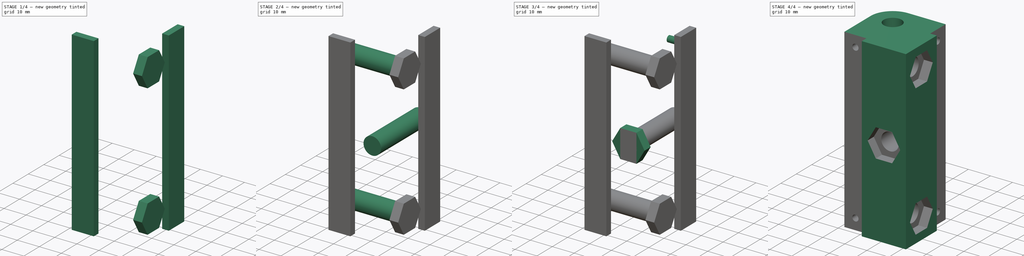
[diagram: build sequence overview — one tinted view per stage of 4, left to right]
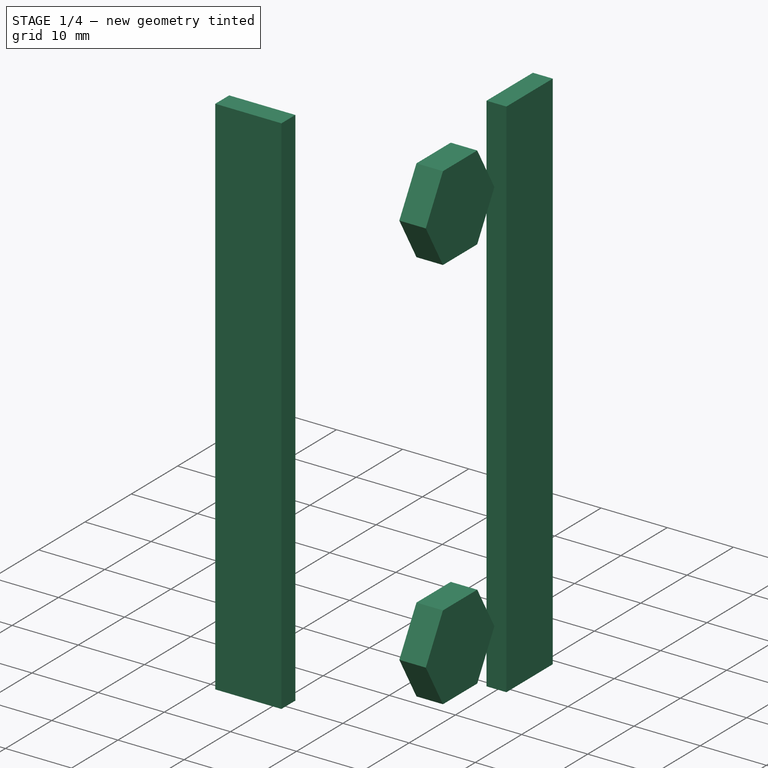
[diagram: stage 1 of 4 — iso view after this stage's code; geometry added in this stage tinted green]
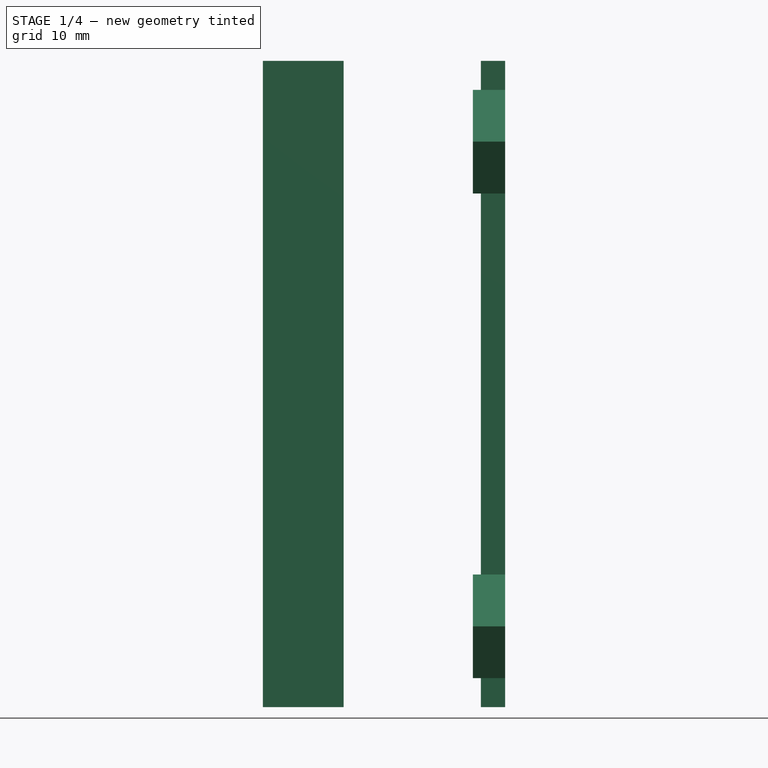
[diagram: stage 1 of 4 — front view after this stage's code; geometry added in this stage tinted green]
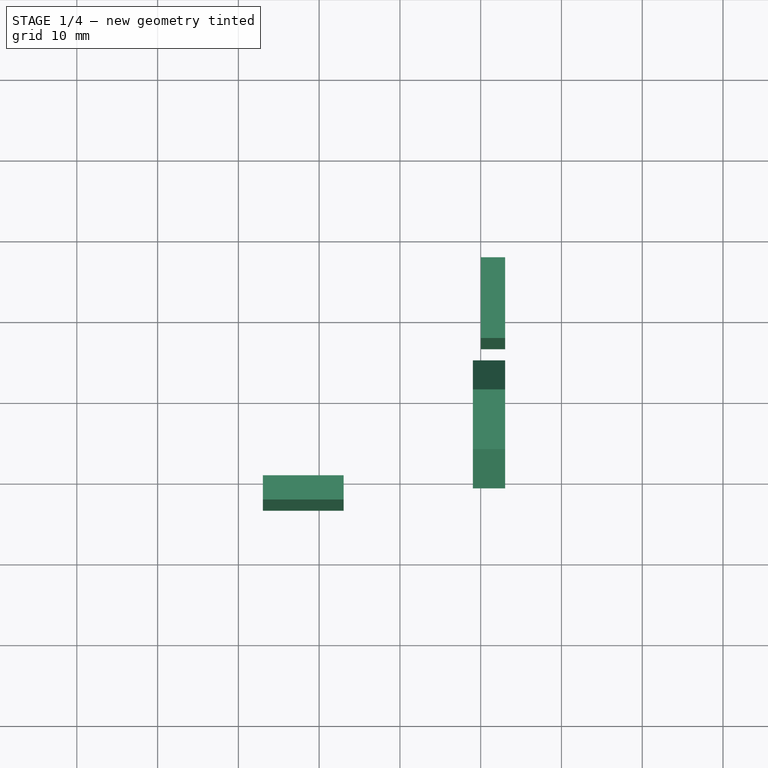
[diagram: stage 1 of 4 — top view after this stage's code; geometry added in this stage tinted green]
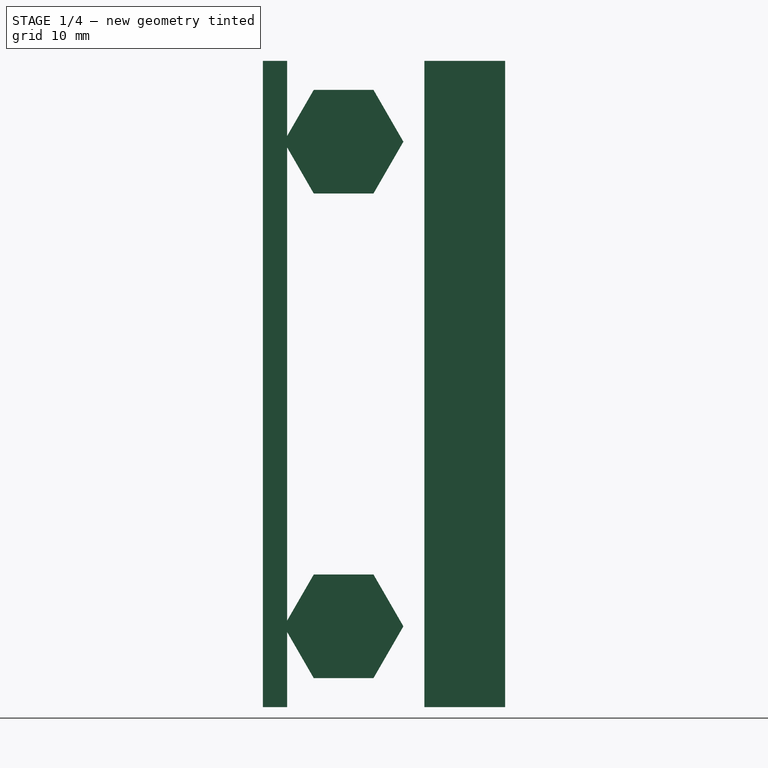
[diagram: stage 1 of 4 — right view after this stage's code; geometry added in this stage tinted green]
FCSTD DOCUMENT  (FreeCAD 0.16R6707 (Git))
Label: Corner_FR
License: All rights reserved
LicenseURL: http://en.wikipedia.org/wiki/All_rights_reserved
objects: Sketcher::SketchObject×9, PartDesign::Pad×9, Part::MultiFuse×1, Part::Cut×1
note: 29 computed .brp shape members not serialized (recipe doc carries the construction recipe); baked Part::Feature solids carry a one-line shape summary decoded from their .brp

FEATURE [PartDesign::Pad] Pad006  label="SideNutFlush02"
  Length = 4
  Length2 = 100
  Placement = pos=(13.0295,0,0) rot=(0.57735,0.57735,0.57735;2.0944rad)
  Reversed = true
  Sketch = -> Sketch002
  Type = 0
FEATURE [PartDesign::Pad] Pad007  label="PlexiFlush02"
  Length = 3
  Length2 = 100
  Placement = pos=(13.0295,0,0) rot=(0.57735,0.57735,0.57735;2.0944rad)
  Reversed = true
  Sketch = -> Sketch003
  Type = 0
FEATURE [PartDesign::Pad] Pad008  label="PlexiFlush01"
  Length = 3
  Length2 = 100
  Placement = pos=(0,-13.3168,0) rot=(1,0,0;1.5708rad)
  Reversed = true
  Sketch = -> Sketch005
  Type = 0
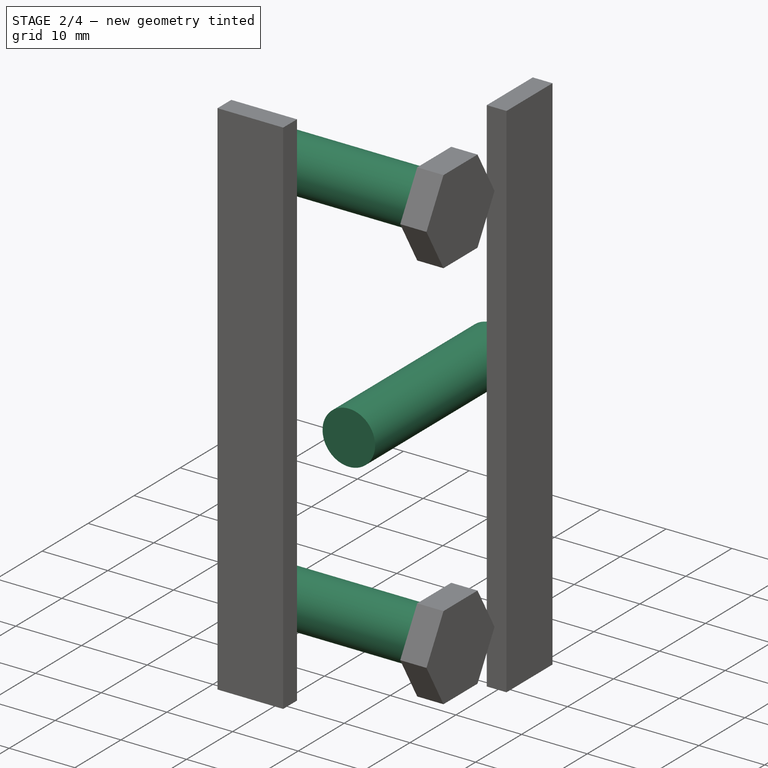
[diagram: stage 2 of 4 — iso view after this stage's code; geometry added in this stage tinted green]
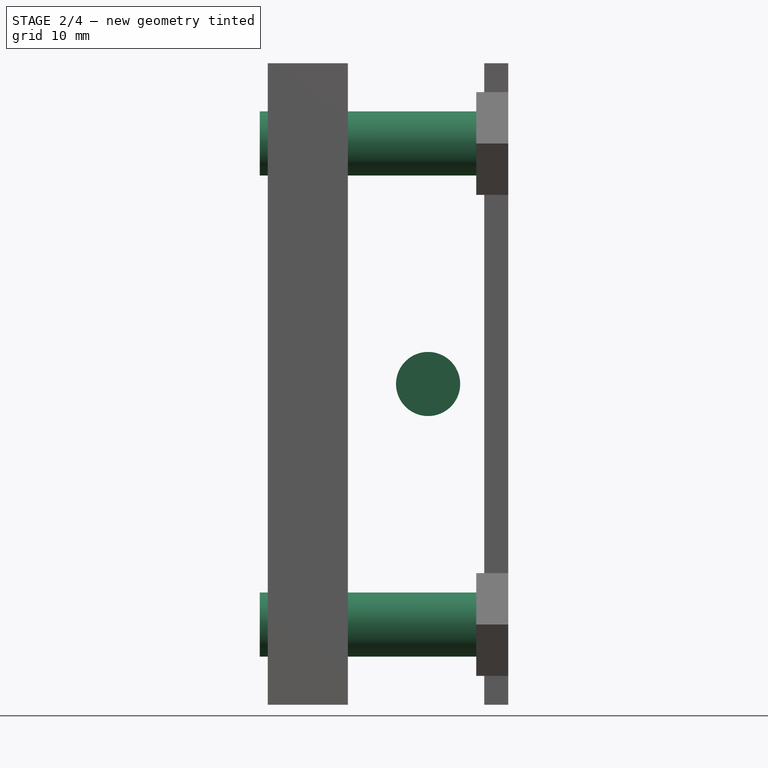
[diagram: stage 2 of 4 — front view after this stage's code; geometry added in this stage tinted green]
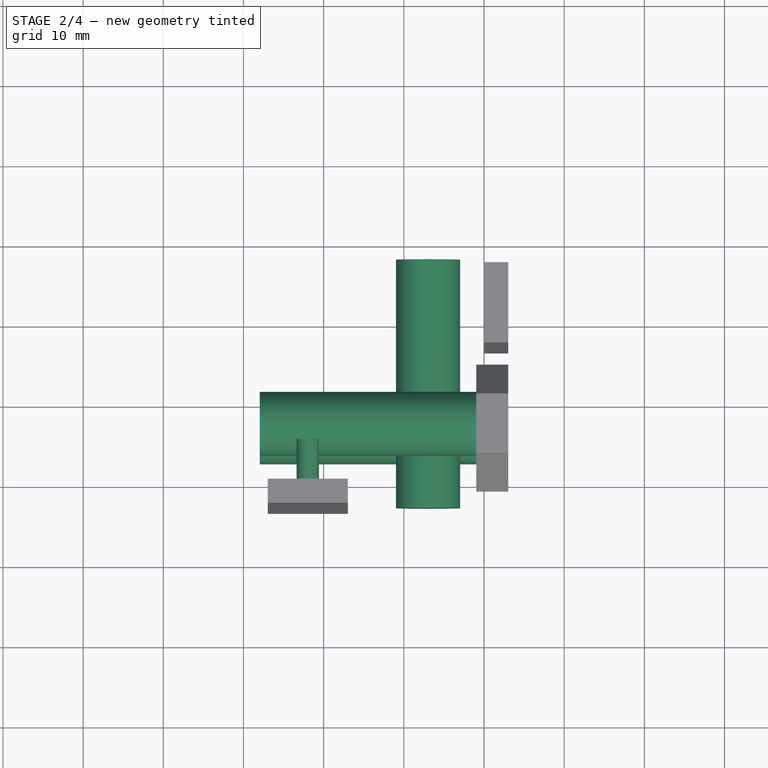
[diagram: stage 2 of 4 — top view after this stage's code; geometry added in this stage tinted green]
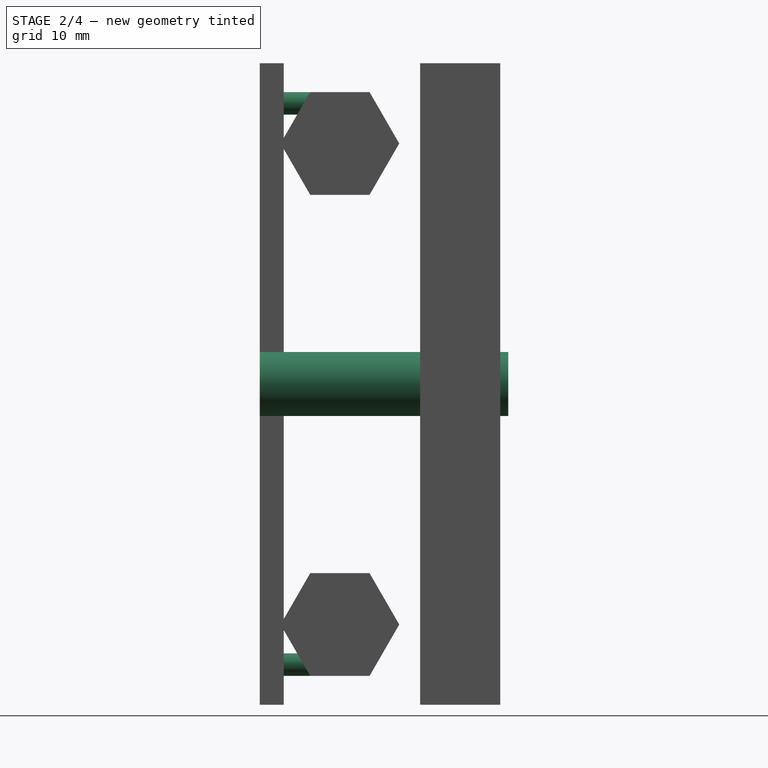
[diagram: stage 2 of 4 — right view after this stage's code; geometry added in this stage tinted green]
FEATURE [PartDesign::Pad] Pad003  label="RodHole01"
  Length = 31
  Length2 = 100
  Placement = pos=(0,-13.3168,0) rot=(1,0,0;1.5708rad)
  Reversed = true
  Sketch = -> Sketch007
  Type = 0
FEATURE [PartDesign::Pad] Pad004  label="RodHole02"
  Length = 31
  Length2 = 100
  Placement = pos=(13.0295,0,0) rot=(0.57735,0.57735,0.57735;2.0944rad)
  Reversed = true
  Sketch = -> Sketch001
  Type = 0
FEATURE [PartDesign::Pad] Pad005  label="PlexiMount01"
  Length = 5
  Length2 = 100
  Placement = pos=(0,-10.3168,0) rot=(1,0,0;1.5708rad)
  Reversed = true
  Sketch = -> Sketch006
  Type = 0
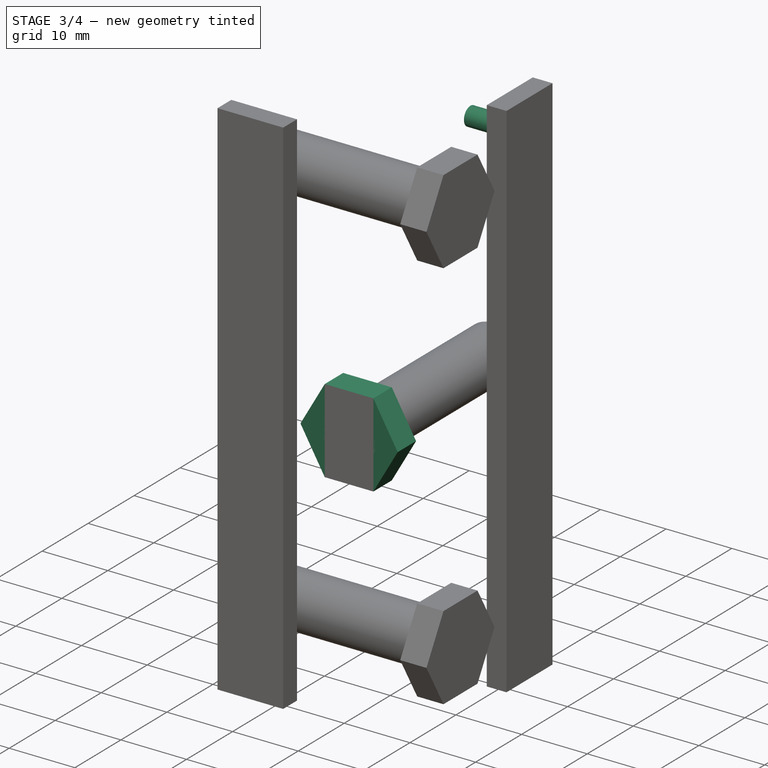
[diagram: stage 3 of 4 — iso view after this stage's code; geometry added in this stage tinted green]
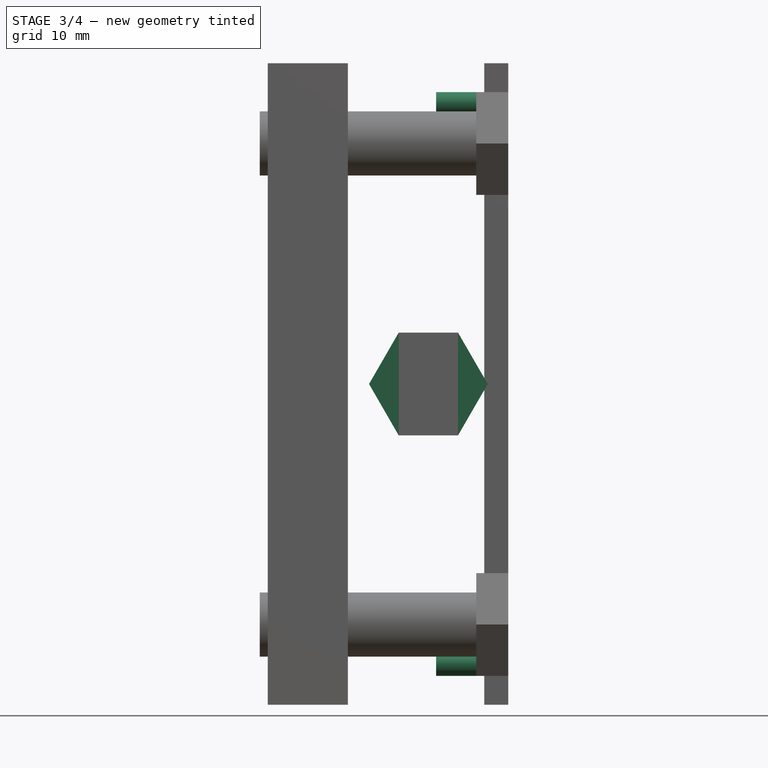
[diagram: stage 3 of 4 — front view after this stage's code; geometry added in this stage tinted green]
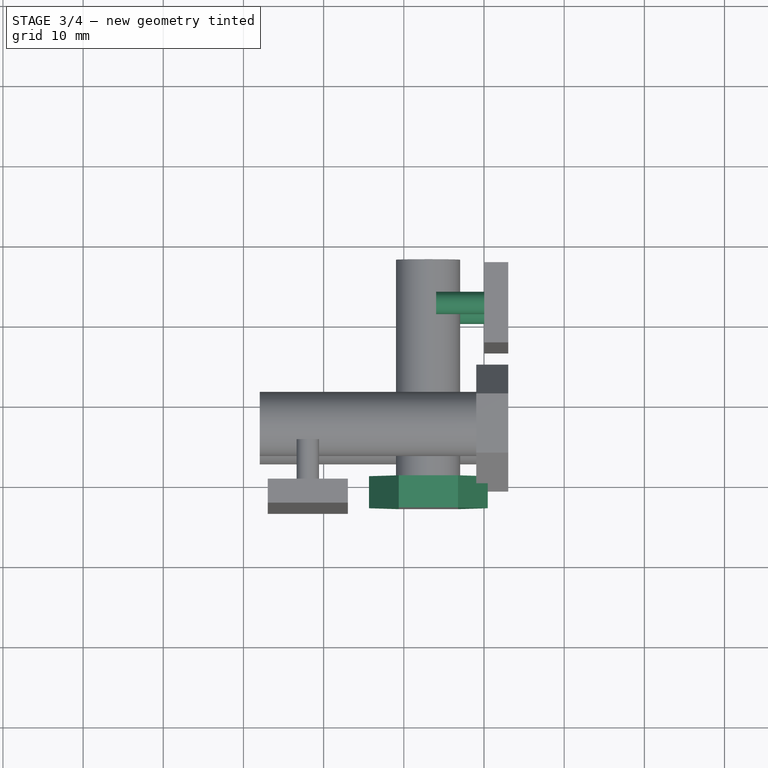
[diagram: stage 3 of 4 — top view after this stage's code; geometry added in this stage tinted green]
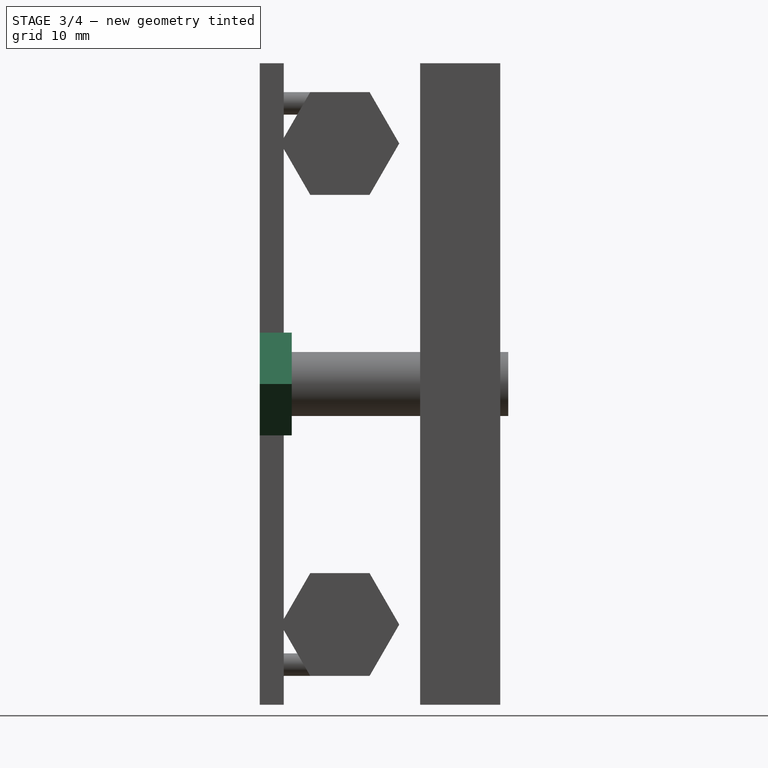
[diagram: stage 3 of 4 — right view after this stage's code; geometry added in this stage tinted green]
FEATURE [Sketcher::SketchObject] Sketch
  sketch-geometry (6):
    g0: LineSegment StartX=-16.9705 StartY=6.68317 StartZ=0 EndX=-16.9705 EndY=-13.3168 EndZ=0
    g1: LineSegment StartX=-16.9705 StartY=-13.3168 StartZ=0 EndX=13.0295 EndY=-13.3168 EndZ=0
    g2: LineSegment StartX=13.0295 StartY=-13.3168 StartZ=0 EndX=13.0295 EndY=16.6832 EndZ=0
    g3: LineSegment StartX=13.0295 StartY=16.6832 StartZ=0 EndX=-6.9705 EndY=16.6832 EndZ=0
    g4: ArcOfCircle CenterX=-6.97053 CenterY=6.6832 CenterZ=0 NormalX=0 NormalY=0 NormalZ=1 Radius=10 StartAngle=1.57079 EndAngle=3.1416
    g5: Circle CenterX=-6.97053 CenterY=6.6832 CenterZ=0 NormalX=0 NormalY=0 NormalZ=1 Radius=4.1
  constraints (16):
    c: Vertical(g0)
    c: Coincident(g0,g1)
    c: Horizontal(g1)
    c: Coincident(g1,g2)
    c: Vertical(g2)
    c: Coincident(g2,g3)
    c: Horizontal(g3)
    c: Coincident(g4,g3)
    c: Coincident(g4,g0)
    c: Equal(g0,g3)
    c: Radius(g4) = 10
    c: Tangent(g0,g4)
    c: Tangent(g4,g3)
    c: DistanceX(g3) = -20
    c: Coincident(g5,g4)
    c: Radius(g5) = 4.1
FEATURE [Sketcher::SketchObject] Sketch001
  Placement = pos=(13.0295,0,0) rot=(0.57735,0.57735,0.57735;2.0944rad)
  sketch-geometry (2):
    g0: Circle CenterX=-3.3168 CenterY=70 CenterZ=0 NormalX=0 NormalY=0 NormalZ=1 Radius=4
    g1: Circle CenterX=-3.3168 CenterY=10 CenterZ=0 NormalX=0 NormalY=0 NormalZ=1 Radius=4
  constraints (4):
    c: Radius(g1) = 4
    c: Equal(g1,g0)
    c: DistanceX(g0,g1) = 0
    c: DistanceY(g1,g0) = 60
FEATURE [Sketcher::SketchObject] Sketch002
  Placement = pos=(13.0295,0,0) rot=(0.57735,0.57735,0.57735;2.0944rad)
  sketch-geometry (14):
    g0: LineSegment StartX=4.0832 StartY=70 StartZ=0 EndX=0.383203 EndY=76.4086 EndZ=0
    g1: LineSegment StartX=0.383203 StartY=76.4086 StartZ=0 EndX=-7.0168 EndY=76.4086 EndZ=0
    g2: LineSegment StartX=-7.0168 StartY=76.4086 StartZ=0 EndX=-10.7168 EndY=70 EndZ=0
    g3: LineSegment StartX=-10.7168 StartY=70 StartZ=0 EndX=-7.0168 EndY=63.5914 EndZ=0
    g4: LineSegment StartX=-7.0168 StartY=63.5914 StartZ=0 EndX=0.383203 EndY=63.5914 EndZ=0
    g5: LineSegment StartX=0.383203 StartY=63.5914 StartZ=0 EndX=4.0832 EndY=70 EndZ=0
    g6: Circle [constr] CenterX=-3.3168 CenterY=70 CenterZ=0 NormalX=0 NormalY=0 NormalZ=1 Radius=7.4
    g7: LineSegment StartX=0.383203 StartY=3.59141 StartZ=0 EndX=4.0832 EndY=10 EndZ=0
    g8: LineSegment StartX=4.0832 StartY=10 StartZ=0 EndX=0.383203 EndY=16.4086 EndZ=0
    g9: LineSegment StartX=0.383203 StartY=16.4086 StartZ=0 EndX=-7.0168 EndY=16.4086 EndZ=0
    g10: LineSegment StartX=-7.0168 StartY=16.4086 StartZ=0 EndX=-10.7168 EndY=10 EndZ=0
    g11: LineSegment StartX=-10.7168 StartY=10 StartZ=0 EndX=-7.0168 EndY=3.59141 EndZ=0
    g12: LineSegment StartX=-7.0168 StartY=3.59141 StartZ=0 EndX=0.383203 EndY=3.59141 EndZ=0
    g13: Circle [constr] CenterX=-3.3168 CenterY=10 CenterZ=0 NormalX=0 NormalY=0 NormalZ=1 Radius=7.4
  constraints (31):
    c: Coincident(g0,g1)
    c: Coincident(g1,g2)
    c: Coincident(g2,g3)
    c: Coincident(g3,g4)
    c: Coincident(g4,g5)
    c: Coincident(g5,g0)
    c: Equal(g0, g1-g5) x5
    c: PointOnObject(g0,g6)
    c: PointOnObject(g1,g6)
    c: PointOnObject(g2,g6)
    c: PointOnObject(g3,g6)
    c: PointOnObject(g4,g6)
    c: PointOnObject(g5,g6)
    c: Coincident(g7,g8)
    c: Coincident(g8,g9)
    c: Coincident(g9,g10)
    c: Coincident(g10,g11)
    c: Coincident(g11,g12)
    c: Coincident(g12,g7)
    c: Equal(g7, g8-g12) x5
    c: PointOnObject(g7,g13)
    c: PointOnObject(g8,g13)
    c: PointOnObject(g9,g13)
    c: PointOnObject(g10,g13)
    c: PointOnObject(g11,g13)
    c: PointOnObject(g12,g13)
    c: Parallel(g9,g4)
    c: Radius(g6) = 7.4
    c: Equal(g6,g13)
    c: DistanceX(g13,g6) = 0
    c: DistanceY(g6,g13) = -60
FEATURE [Sketcher::SketchObject] Sketch003
  Placement = pos=(13.0295,0,0) rot=(0.57735,0.57735,0.57735;2.0944rad)
  sketch-geometry (4):
    g0: LineSegment StartX=16.6832 StartY=80 StartZ=0 EndX=6.6832 EndY=80 EndZ=0
    g1: LineSegment StartX=6.6832 StartY=80 StartZ=0 EndX=6.6832 EndY=0 EndZ=0
    g2: LineSegment StartX=6.6832 StartY=0 StartZ=0 EndX=16.6832 EndY=0 EndZ=0
    g3: LineSegment StartX=16.6832 StartY=0 StartZ=0 EndX=16.6832 EndY=80 EndZ=0
  constraints (9):
    c: Coincident(g0,g1)
    c: Coincident(g1,g2)
    c: Coincident(g2,g3)
    c: Coincident(g3,g0)
    c: Horizontal(g0)
    c: Horizontal(g2)
    c: Vertical(g1)
    c: Vertical(g3)
    c: DistanceX(g0) = -10
FEATURE [Sketcher::SketchObject] Sketch004
  Placement = pos=(10.0295,0,0) rot=(0.57735,0.57735,0.57735;2.0944rad)
  sketch-geometry (2):
    g0: Circle CenterX=11.6832 CenterY=75 CenterZ=0 NormalX=0 NormalY=0 NormalZ=1 Radius=1.4
    g1: Circle CenterX=11.6832 CenterY=5 CenterZ=0 NormalX=0 NormalY=0 NormalZ=1 Radius=1.4
  constraints (4):
    c: DistanceX(g1,g0) = 0
    c: DistanceY(g0,g1) = -70
    c: Radius(g0) = 1.4
    c: Equal(g0,g1)
FEATURE [Sketcher::SketchObject] Sketch005
  Placement = pos=(0,-13.3168,0) rot=(1,0,0;1.5708rad)
  sketch-geometry (4):
    g0: LineSegment StartX=-16.9705 StartY=80 StartZ=0 EndX=-6.97053 EndY=80 EndZ=0
    g1: LineSegment StartX=-6.97053 StartY=80 StartZ=0 EndX=-6.97053 EndY=0 EndZ=0
    g2: LineSegment StartX=-6.97053 StartY=0 StartZ=0 EndX=-16.9705 EndY=0 EndZ=0
    g3: LineSegment StartX=-16.9705 StartY=0 StartZ=0 EndX=-16.9705 EndY=80 EndZ=0
  constraints (9):
    c: Coincident(g0,g1)
    c: Coincident(g1,g2)
    c: Coincident(g2,g3)
    c: Coincident(g3,g0)
    c: Horizontal(g0)
    c: Horizontal(g2)
    c: Vertical(g1)
    c: Vertical(g3)
    c: DistanceX(g0) = 10
FEATURE [Sketcher::SketchObject] Sketch006
  Placement = pos=(0,-10.3168,0) rot=(1,0,0;1.5708rad)
  sketch-geometry (2):
    g0: Circle CenterX=-11.9705 CenterY=75 CenterZ=0 NormalX=0 NormalY=0 NormalZ=1 Radius=1.4
    g1: Circle CenterX=-11.9705 CenterY=5 CenterZ=0 NormalX=0 NormalY=0 NormalZ=1 Radius=1.4
  constraints (4):
    c: DistanceX(g0,g1) = 0
    c: DistanceY(g0,g1) = -70
    c: Radius(g0) = 1.4
    c: Equal(g0,g1)
FEATURE [Sketcher::SketchObject] Sketch007
  Placement = pos=(0,-13.3168,0) rot=(1,0,0;1.5708rad)
  sketch-geometry (1):
    g0: Circle CenterX=3.0295 CenterY=40 CenterZ=0 NormalX=0 NormalY=0 NormalZ=1 Radius=4
  constraints (2):
    c: Radius(g0) = 4
    c: DistanceY(g-1,g0) = 40
FEATURE [Sketcher::SketchObject] Sketch008
  Placement = pos=(0,-13.3168,0) rot=(1,0,0;1.5708rad)
  sketch-geometry (7):
    g0: LineSegment StartX=6.76331 StartY=33.5914 StartZ=0 EndX=10.4633 EndY=40 EndZ=0
    g1: LineSegment StartX=10.4633 StartY=40 StartZ=0 EndX=6.76331 EndY=46.4086 EndZ=0
    g2: LineSegment StartX=6.76331 StartY=46.4086 StartZ=0 EndX=-0.636689 EndY=46.4086 EndZ=0
    g3: LineSegment StartX=-0.636689 StartY=46.4086 StartZ=0 EndX=-4.33669 EndY=40 EndZ=0
    g4: LineSegment StartX=-4.33669 StartY=40 StartZ=0 EndX=-0.636689 EndY=33.5914 EndZ=0
    g5: LineSegment StartX=-0.636689 StartY=33.5914 StartZ=0 EndX=6.76331 EndY=33.5914 EndZ=0
    g6: Circle [constr] CenterX=3.06331 CenterY=40 CenterZ=0 NormalX=0 NormalY=0 NormalZ=1 Radius=7.4
  constraints (16):
    c: Coincident(g0,g1)
    c: Coincident(g1,g2)
    c: Coincident(g2,g3)
    c: Coincident(g3,g4)
    c: Coincident(g4,g5)
    c: Coincident(g5,g0)
    c: Equal(g0, g1-g5) x5
    c: PointOnObject(g0,g6)
    c: PointOnObject(g1,g6)
    c: PointOnObject(g2,g6)
    c: PointOnObject(g3,g6)
    c: PointOnObject(g4,g6)
    c: PointOnObject(g5,g6)
    c: Radius(g6) = 7.4
    c: Perpendicular(g-2,g2)
    c: DistanceY(g-1,g6) = 40
FEATURE [PartDesign::Pad] Pad001  label="SideNutFlush01"
  Length = 4
  Length2 = 100
  Placement = pos=(0,-13.3168,0) rot=(1,0,0;1.5708rad)
  Reversed = true
  Sketch = -> Sketch008
  Type = 0
FEATURE [PartDesign::Pad] Pad002  label="PlexiMount02"
  Length = 6
  Length2 = 100
  Placement = pos=(10.0295,0,0) rot=(0.57735,0.57735,0.57735;2.0944rad)
  Reversed = true
  Sketch = -> Sketch004
  Type = 0
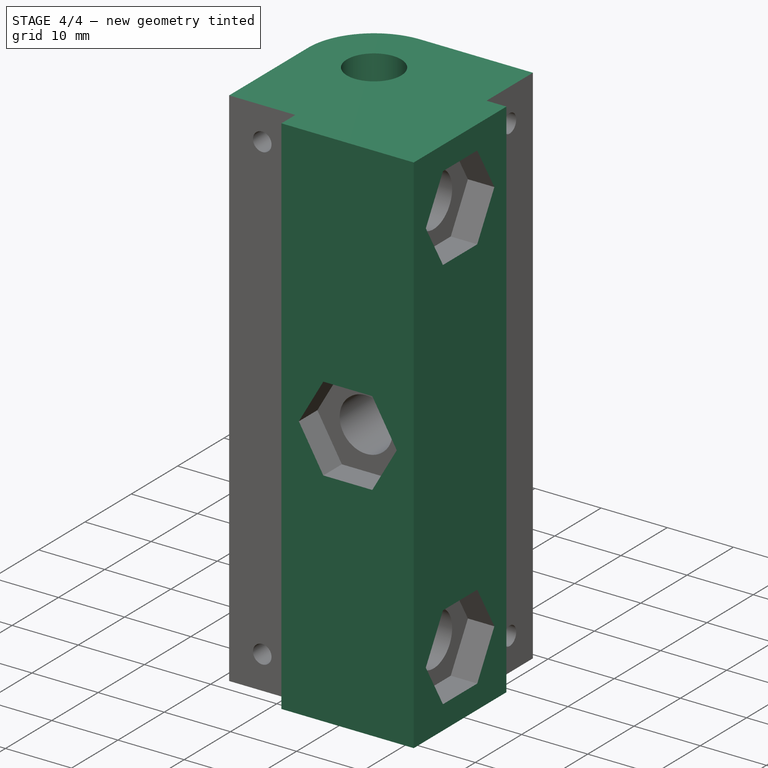
[diagram: stage 4 of 4 — iso view after this stage's code; geometry added in this stage tinted green]
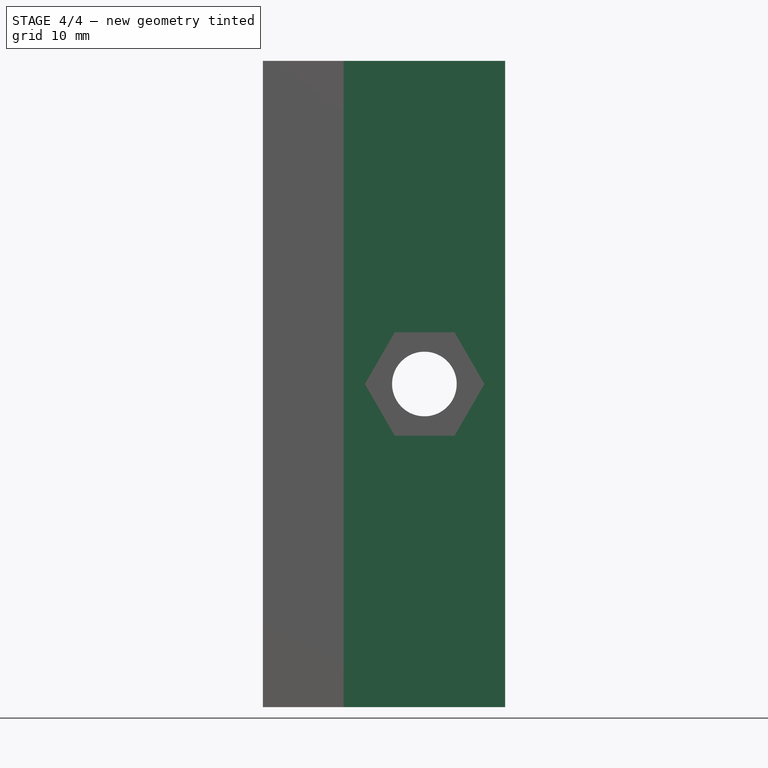
[diagram: stage 4 of 4 — front view after this stage's code; geometry added in this stage tinted green]
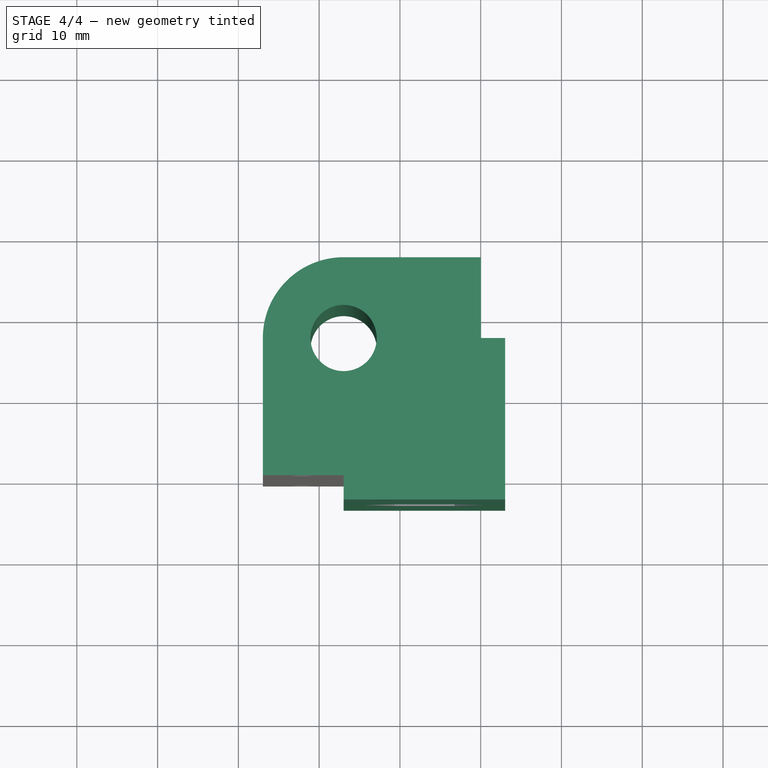
[diagram: stage 4 of 4 — top view after this stage's code; geometry added in this stage tinted green]
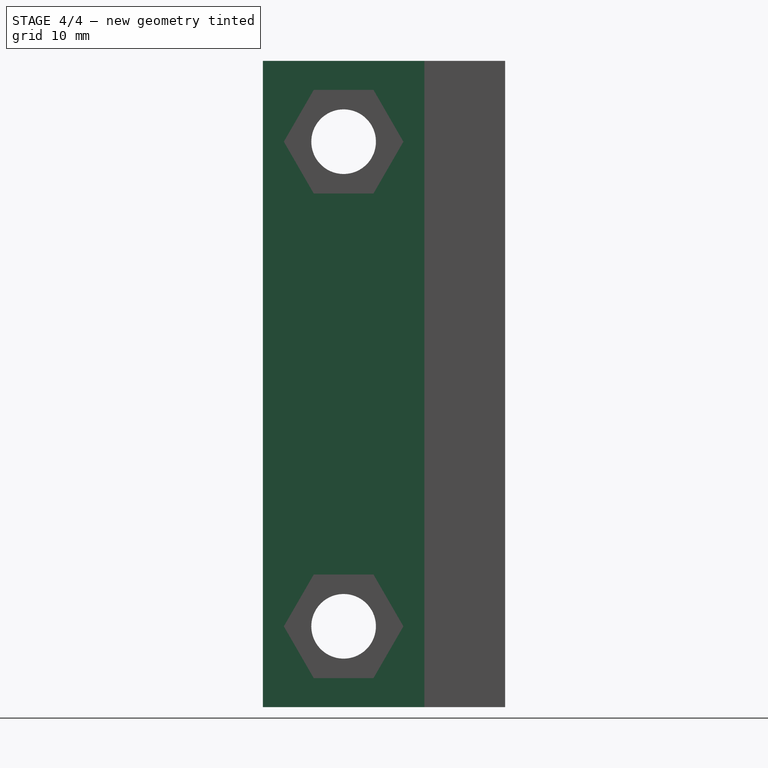
[diagram: stage 4 of 4 — right view after this stage's code; geometry added in this stage tinted green]
FEATURE [PartDesign::Pad] Pad  label="Base"
  Length = 80
  Length2 = 100
  Sketch = -> Sketch
  Type = 0
FEATURE [Part::MultiFuse] Fusion  label="CutBlock"
  Shapes = -> [Pad001,Pad002,Pad003,Pad004,Pad005,Pad006,Pad007,Pad008]
FEATURE [Part::Cut] Cut  label="Final"
  Base = -> Pad
  Tool = -> Fusion
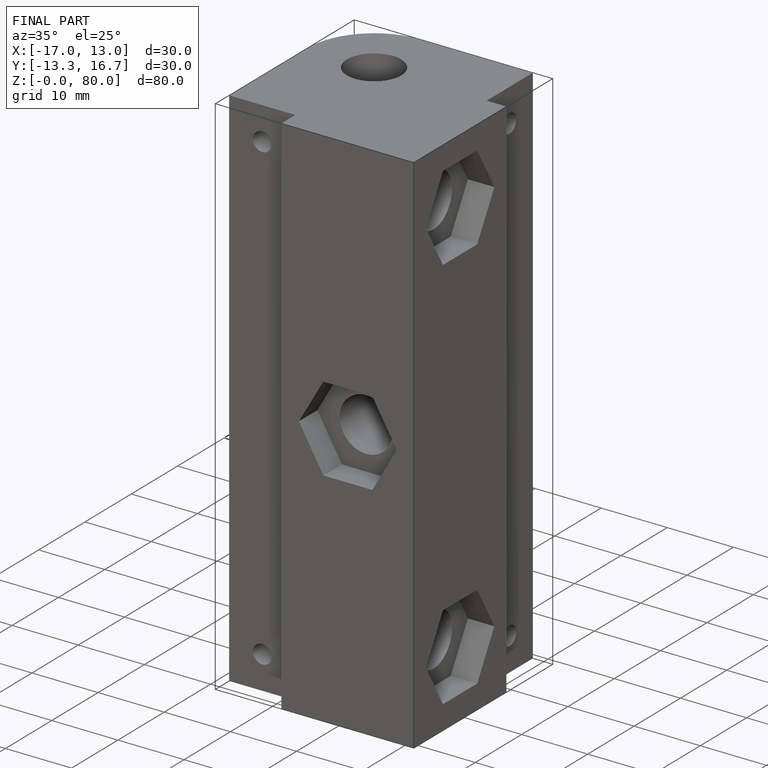
[diagram: finished part — iso view with bounding-box wireframe]
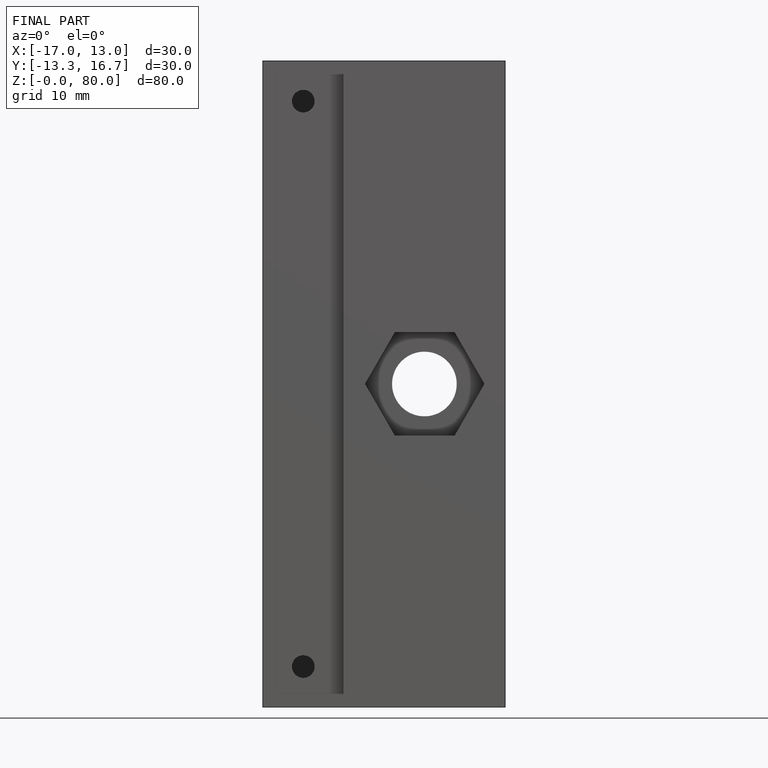
[diagram: finished part — front view with bounding-box wireframe]
